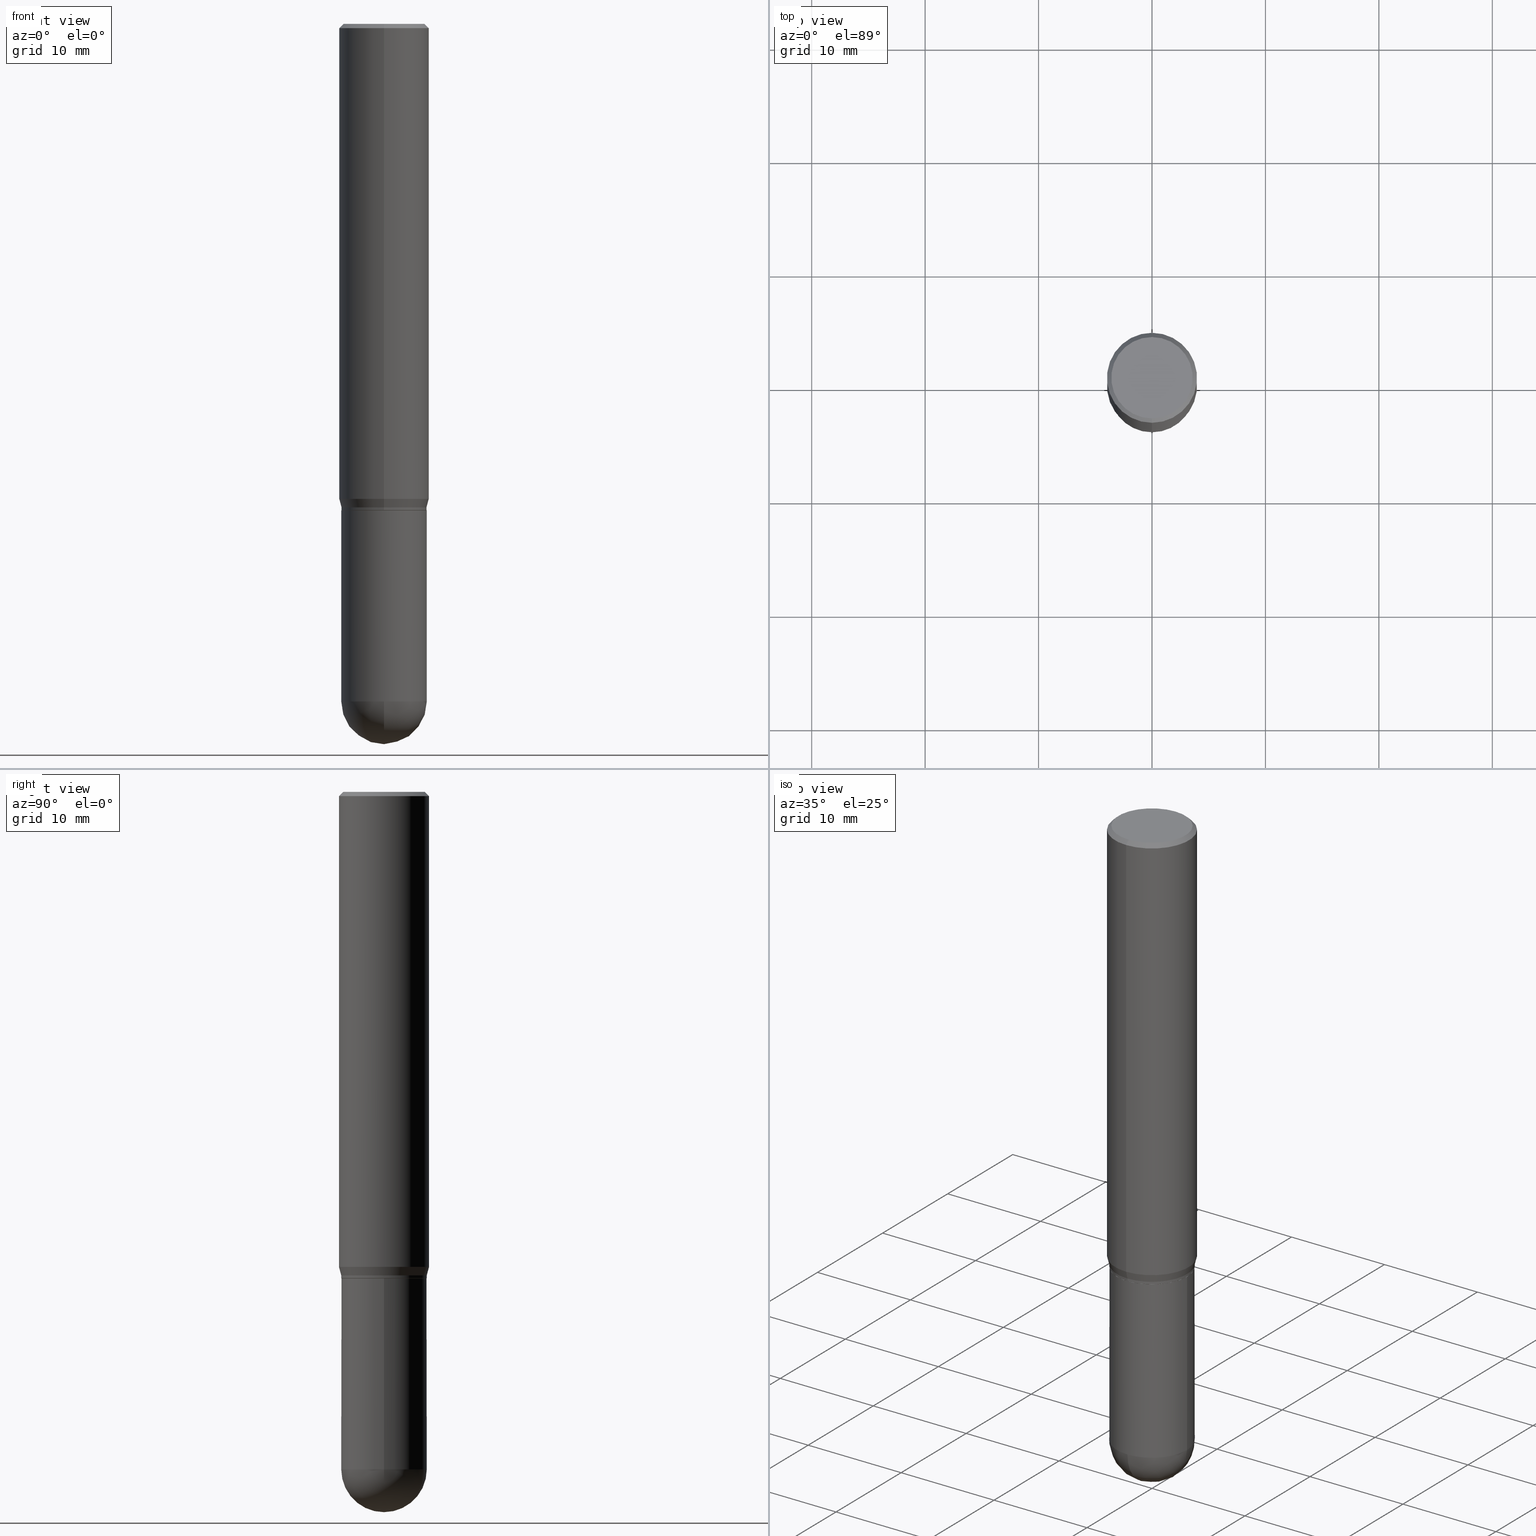
[diagram: canonical four-view strip — front | top / right | iso, engineering-drawing reading convention]
A machine part, canonical four-view strip (front | top / right | iso — engineering-drawing reading convention). The complete STEP part file that produces these views, byte-faithful:
ISO-10303-21;
HEADER;
FILE_DESCRIPTION (( 'STEP AP203' ),
    '1' );
FILE_NAME ('39538.STEP',
    '2024-03-08T12:53:18',
    ( '' ),
    ( '' ),
    'SwSTEP 2.0',
    'SolidWorks 2023',
    '' );
FILE_SCHEMA (( 'CONFIG_CONTROL_DESIGN' ));
ENDSEC;

DATA;
#1 = AXIS2_PLACEMENT_3D ( 'NONE', #288, #17, #325 ) ;
#2 = VECTOR ( 'NONE', #437, 39.37007874015748143 ) ;
#3 = CYLINDRICAL_SURFACE ( 'NONE', #304, 0.1484499999999999986 ) ;
#4 = ORIENTED_EDGE ( 'NONE', *, *, #328, .F. ) ;
#5 = DATE_AND_TIME ( #483, #411 ) ;
#6 = EDGE_CURVE ( 'NONE', #380, #352, #165, .T. ) ;
#7 = DIRECTION ( 'NONE',  ( -6.982962677686265922E-15, -1.000000000000000000, 3.491450888933196382E-15 ) ) ;
#8 = EDGE_CURVE ( 'NONE', #61, #349, #104, .T. ) ;
#9 = CLOSED_SHELL ( 'NONE', ( #420, #14, #332, #322, #309, #75, #497, #473, #168, #412, #426, #318 ) ) ;
#10 = AXIS2_PLACEMENT_3D ( 'NONE', #424, #73, #376 ) ;
#11 = PERSON_AND_ORGANIZATION ( #233, #422 ) ;
#12 = ORIENTED_EDGE ( 'NONE', *, *, #481, .T. ) ;
#13 = CARTESIAN_POINT ( 'NONE',  ( 4.103532336190774376E-29, -5.858654591629903200E-15, -1.677999999999999936 ) ) ;
#14 = ADVANCED_FACE ( 'NONE', ( #191 ), #409, .T. ) ;
#15 = CARTESIAN_POINT ( 'NONE',  ( 4.032344129325759959E-29, -5.757018469174787690E-15, -1.648890003700962614 ) ) ;
#16 = CALENDAR_DATE ( 2024, 8, 3 ) ;
#17 = DIRECTION ( 'NONE',  ( -2.445468806185136597E-29, 3.491481338843145583E-15, 1.000000000000000000 ) ) ;
#18 = CIRCLE ( 'NONE', #388, 0.1484499999999999154 ) ;
#19 = DIRECTION ( 'NONE',  ( -6.982962677686265133E-15, -1.000000000000000000, 3.680495781292373980E-15 ) ) ;
#20 = LOCAL_TIME ( 7, 53, 18.00000000000000000, #480 ) ;
#21 = CYLINDRICAL_SURFACE ( 'NONE', #410, 0.1562500000000000000 ) ;
#22 = EDGE_LOOP ( 'NONE', ( #70, #432, #39, #478 ) ) ;
#23 = CARTESIAN_POINT ( 'NONE',  ( 0.000000000000000000, 0.000000000000000000, 0.000000000000000000 ) ) ;
#24 = ORIENTED_EDGE ( 'NONE', *, *, #396, .T. ) ;
#25 = CARTESIAN_POINT ( 'NONE',  ( 4.127987236883210473E-29, -5.893569100519235546E-15, -1.688000000000000167 ) ) ;
#26 = VECTOR ( 'NONE', #166, 39.37007874015748143 ) ;
#27 = ORIENTED_EDGE ( 'NONE', *, *, #145, .T. ) ;
#28 = ORIENTED_EDGE ( 'NONE', *, *, #257, .T. ) ;
#29 = EDGE_CURVE ( 'NONE', #278, #41, #247, .T. ) ;
#30 = DIRECTION ( 'NONE',  ( -4.937700262164631661E-15, -0.7071067811865571207, 0.7071067811865379138 ) ) ;
#31 = CARTESIAN_POINT ( 'NONE',  ( 0.000000000000000000, 0.000000000000000000, 0.000000000000000000 ) ) ;
#32 = DIRECTION ( 'NONE',  ( -2.445490069243608012E-29, 3.491450888933196382E-15, 1.000000000000000000 ) ) ;
#33 = EDGE_CURVE ( 'NONE', #195, #59, #85, .T. ) ;
#34 = ORIENTED_EDGE ( 'NONE', *, *, #92, .F. ) ;
#35 = CIRCLE ( 'NONE', #10, 0.1484499999999999986 ) ;
#36 = AXIS2_PLACEMENT_3D ( 'NONE', #327, #400, #55 ) ;
#37 = CARTESIAN_POINT ( 'NONE',  ( 4.127987236883210473E-29, -5.893569100519235546E-15, -1.688000000000000167 ) ) ;
#38 = CC_DESIGN_DATE_AND_TIME_ASSIGNMENT ( #139, #350, ( #135 ) ) ;
#39 = ORIENTED_EDGE ( 'NONE', *, *, #240, .T. ) ;
#40 = ORIENTED_EDGE ( 'NONE', *, *, #339, .F. ) ;
#41 = VERTEX_POINT ( 'NONE', #441 ) ;
#42 = FACE_OUTER_BOUND ( 'NONE', #211, .T. ) ;
#43 = CC_DESIGN_PERSON_AND_ORGANIZATION_ASSIGNMENT ( #398, #393, ( #115 ) ) ;
#44 =( CONVERSION_BASED_UNIT ( 'INCH', #199 ) LENGTH_UNIT ( ) NAMED_UNIT ( #270 ) );
#45 = ORIENTED_EDGE ( 'NONE', *, *, #105, .T. ) ;
#46 = ORIENTED_EDGE ( 'NONE', *, *, #481, .F. ) ;
#47 = PERSON_AND_ORGANIZATION_ROLE ( 'classification_officer' ) ;
#48 = LINE ( 'NONE', #99, #72 ) ;
#49 = PERSON_AND_ORGANIZATION_ROLE ( 'creator' ) ;
#50 = DIRECTION ( 'NONE',  ( -6.982962677686265133E-15, -1.000000000000000000, 3.680495781292373980E-15 ) ) ;
#51 = EDGE_CURVE ( 'NONE', #278, #463, #297, .T. ) ;
#52 = EDGE_LOOP ( 'NONE', ( #4, #12, #363, #417 ) ) ;
#53 = APPROVAL_PERSON_ORGANIZATION ( #204, #467, #98 ) ;
#54 = COORDINATED_UNIVERSAL_TIME_OFFSET ( 5, 0, .BEHIND. ) ;
#55 = DIRECTION ( 'NONE',  ( 6.982962677686265922E-15, 1.000000000000000000, -3.680495781292373191E-15 ) ) ;
#56 = MECHANICAL_CONTEXT ( 'NONE', #175, 'mechanical' ) ;
#57 = ORIENTED_EDGE ( 'NONE', *, *, #222, .T. ) ;
#58 = LINE ( 'NONE', #394, #225 ) ;
#59 = VERTEX_POINT ( 'NONE', #320 ) ;
#60 = CARTESIAN_POINT ( 'NONE',  ( 0.000000000000000000, 0.000000000000000000, 0.000000000000000000 ) ) ;
#61 = VERTEX_POINT ( 'NONE', #366 ) ;
#62 = DIRECTION ( 'NONE',  ( -2.445468806185136597E-29, 3.491481338843145583E-15, 1.000000000000000000 ) ) ;
#63 = EDGE_LOOP ( 'NONE', ( #203, #78 ) ) ;
#64 = AXIS2_PLACEMENT_3D ( 'NONE', #224, #465, #192 ) ;
#65 = DIRECTION ( 'NONE',  ( -2.445490069243608012E-29, 3.491450888933196382E-15, 1.000000000000000000 ) ) ;
#66 = AXIS2_PLACEMENT_3D ( 'NONE', #313, #479, #193 ) ;
#67 = EDGE_LOOP ( 'NONE', ( #57, #243 ) ) ;
#68 = CARTESIAN_POINT ( 'NONE',  ( 6.107324543681408519E-29, -8.737793287974535465E-15, -2.500000000000000000 ) ) ;
#69 = DIRECTION ( 'NONE',  ( -2.445490069243607732E-29, 3.491450888933196382E-15, 1.000000000000000000 ) ) ;
#70 = ORIENTED_EDGE ( 'NONE', *, *, #105, .F. ) ;
#71 = DIRECTION ( 'NONE',  ( -2.445468806185136877E-29, 3.491481338843145188E-15, 1.000000000000000000 ) ) ;
#72 = VECTOR ( 'NONE', #444, 39.37007874015748143 ) ;
#73 = DIRECTION ( 'NONE',  ( -2.445468806185136597E-29, 3.491481338843145583E-15, 1.000000000000000000 ) ) ;
#74 = ORIENTED_EDGE ( 'NONE', *, *, #239, .T. ) ;
#75 = ADVANCED_FACE ( 'NONE', ( #246 ), #97, .T. ) ;
#76 =( NAMED_UNIT ( * ) SI_UNIT ( $, .STERADIAN. ) SOLID_ANGLE_UNIT ( ) );
#77 = PRODUCT_DEFINITION_SHAPE ( 'NONE', 'NONE',  #135 ) ;
#78 = ORIENTED_EDGE ( 'NONE', *, *, #339, .T. ) ;
#79 = AXIS2_PLACEMENT_3D ( 'NONE', #258, #302, #408 ) ;
#80 = CARTESIAN_POINT ( 'NONE',  ( -1.036620809502525501E-15, -0.1484499999999999154, 5.183058844621327306E-16 ) ) ;
#81 = CARTESIAN_POINT ( 'NONE',  ( -0.1484499999999999986, -5.997206029926045282E-15, -1.688000000000000167 ) ) ;
#82 = ORIENTED_EDGE ( 'NONE', *, *, #6, .T. ) ;
#83 = ADVANCED_FACE ( 'NONE', ( #173 ), #250, .F. ) ;
#84 = DIRECTION ( 'NONE',  ( 1.000000000000000000, -6.982962677686261189E-15, 0.000000000000000000 ) ) ;
#85 = CIRCLE ( 'NONE', #440, 0.1484499999999999154 ) ;
#86 = AXIS2_PLACEMENT_3D ( 'NONE', #485, #208, #256 ) ;
#87 = CONICAL_SURFACE ( 'NONE', #390, 0.1562500000000000000, 0.7853981633974485010 ) ;
#88 = PERSON_AND_ORGANIZATION ( #233, #422 ) ;
#89 = CARTESIAN_POINT ( 'NONE',  ( 1.091087918388479371E-15, 0.1562499999999999445, -0.01500000000000057711 ) ) ;
#90 = ORIENTED_EDGE ( 'NONE', *, *, #307, .F. ) ;
#91 = ORIENTED_EDGE ( 'NONE', *, *, #503, .F. ) ;
#92 = EDGE_CURVE ( 'NONE', #374, #439, #114, .T. ) ;
#93 = DIRECTION ( 'NONE',  ( -2.445468806185136877E-29, 3.491481338843145188E-15, 1.000000000000000000 ) ) ;
#94 = CALENDAR_DATE ( 2024, 8, 3 ) ;
#95 = DIRECTION ( 'NONE',  ( 1.000000000000000000, -6.982962677686261189E-15, 0.000000000000000000 ) ) ;
#96 = VERTEX_POINT ( 'NONE', #144 ) ;
#97 = CONICAL_SURFACE ( 'NONE', #450, 0.1484499999999999154, 0.2617993877991516838 ) ;
#98 = APPROVAL_ROLE ( '' ) ;
#99 = CARTESIAN_POINT ( 'NONE',  ( 1.051247977557109233E-15, 0.1479499999999940862, -1.688000000000000611 ) ) ;
#100 = CALENDAR_DATE ( 2024, 8, 3 ) ;
#101 = DIRECTION ( 'NONE',  ( -2.445490069243608012E-29, 3.491450888933196382E-15, 1.000000000000000000 ) ) ;
#102 = ADVANCED_FACE ( 'NONE', ( #213 ), #134, .T. ) ;
#103 = DIRECTION ( 'NONE',  ( -2.445490069243607732E-29, 3.491450888933196382E-15, 1.000000000000000000 ) ) ;
#104 = CIRCLE ( 'NONE', #218, 0.1479499999999999982 ) ;
#105 = EDGE_CURVE ( 'NONE', #61, #59, #48, .T. ) ;
#106 = CIRCLE ( 'NONE', #1, 0.1484499999999999986 ) ;
#107 = LOCAL_TIME ( 7, 53, 18.00000000000000000, #286 ) ;
#108 = CARTESIAN_POINT ( 'NONE',  ( 4.032344129325759959E-29, -5.757018469174787690E-15, -1.648890003700962614 ) ) ;
#109 = VERTEX_POINT ( 'NONE', #492 ) ;
#110 = EDGE_CURVE ( 'NONE', #463, #264, #242, .T. ) ;
#111 = DIRECTION ( 'NONE',  ( -7.105427357601001859E-15, -1.000000000000000000, 0.000000000000000000 ) ) ;
#112 = CARTESIAN_POINT ( 'NONE',  ( 1.110223024625156343E-15, 0.1562500000000000000, -5.455392013958119963E-16 ) ) ;
#113 = FACE_OUTER_BOUND ( 'NONE', #182, .T. ) ;
#114 = CIRCLE ( 'NONE', #316, 0.1484499999999999986 ) ;
#115 = PRODUCT_DEFINITION_FORMATION_WITH_SPECIFIED_SOURCE ( 'ANY', '', #127, .NOT_KNOWN. ) ;
#116 = DIRECTION ( 'NONE',  ( -2.445490069243608012E-29, 3.491450888933196382E-15, 1.000000000000000000 ) ) ;
#117 = PLANE ( 'NONE',  #299 ) ;
#118 = APPROVAL ( #395, 'UNSPECIFIED' ) ;
#119 = ORIENTED_EDGE ( 'NONE', *, *, #403, .F. ) ;
#120 = DIRECTION ( 'NONE',  ( -2.445490069243608012E-29, 3.491450888933196382E-15, 1.000000000000000000 ) ) ;
#121 = ORIENTED_EDGE ( 'NONE', *, *, #29, .T. ) ;
#122 = DIRECTION ( 'NONE',  ( -2.445468806185136597E-29, 3.491481338843145583E-15, 1.000000000000000000 ) ) ;
#123 = EDGE_LOOP ( 'NONE', ( #438, #74, #119, #91 ) ) ;
#124 = AXIS2_PLACEMENT_3D ( 'NONE', #200, #305, #344 ) ;
#125 = CARTESIAN_POINT ( 'NONE',  ( 4.127987236883210473E-29, -5.893569100519235546E-15, -1.688000000000000167 ) ) ;
#126 = ORIENTED_EDGE ( 'NONE', *, *, #159, .F. ) ;
#127 = PRODUCT ( '39538', '39538', '', ( #56 ) ) ;
#128 = DIRECTION ( 'NONE',  ( -6.982962677686265922E-15, -1.000000000000000000, 3.692934090793191643E-15 ) ) ;
#129 = DIRECTION ( 'NONE',  ( -6.982962677686265133E-15, -1.000000000000000000, 3.680495781292373980E-15 ) ) ;
#130 = PERSON_AND_ORGANIZATION_ROLE ( 'design_owner' ) ;
#131 = AXIS2_PLACEMENT_3D ( 'NONE', #31, #504, #185 ) ;
#132 = APPROVAL_PERSON_ORGANIZATION ( #88, #118, #446 ) ;
#133 = PERSON_AND_ORGANIZATION ( #233, #422 ) ;
#134 = SPHERICAL_SURFACE ( 'NONE', #36, 0.1484499999999999431 ) ;
#135 = PRODUCT_DEFINITION ( 'UNKNOWN', '', #115, #456 ) ;
#136 = DIRECTION ( 'NONE',  ( 1.000000000000000000, 0.000000000000000000, 0.000000000000000000 ) ) ;
#137 = CARTESIAN_POINT ( 'NONE',  ( 5.750642171184658911E-29, -8.210392942356599628E-15, -2.351550000000000029 ) ) ;
#138 = ORIENTED_EDGE ( 'NONE', *, *, #245, .F. ) ;
#139 = DATE_AND_TIME ( #16, #20 ) ;
#140 = DIRECTION ( 'NONE',  ( -2.445490069243608012E-29, 3.491450888933196382E-15, 1.000000000000000000 ) ) ;
#141 = VECTOR ( 'NONE', #71, 39.37007874015748143 ) ;
#142 = LOCAL_TIME ( 7, 53, 18.00000000000000000, #54 ) ;
#143 = SHAPE_DEFINITION_REPRESENTATION ( #77, #174 ) ;
#144 = CARTESIAN_POINT ( 'NONE',  ( 1.110223024625196772E-15, 0.1562499999999942268, -1.648890003700963280 ) ) ;
#145 = EDGE_CURVE ( 'NONE', #488, #380, #18, .T. ) ;
#146 = LINE ( 'NONE', #268, #267 ) ;
#147 = CARTESIAN_POINT ( 'NONE',  ( -1.033129328163641670E-15, -0.1479500000000058824, -1.687999999999999501 ) ) ;
#148 = ORIENTED_EDGE ( 'NONE', *, *, #509, .T. ) ;
#149 = VECTOR ( 'NONE', #358, 39.37007874015748143 ) ;
#150 = AXIS2_PLACEMENT_3D ( 'NONE', #108, #262, #413 ) ;
#151 = DIRECTION ( 'NONE',  ( -6.982962677686265133E-15, -1.000000000000000000, 3.491450888933196776E-15 ) ) ;
#152 = ORIENTED_EDGE ( 'NONE', *, *, #145, .F. ) ;
#153 = DIRECTION ( 'NONE',  ( -1.000000000000000000, 7.105427357601001070E-15, -4.926315508542082329E-29 ) ) ;
#154 = FACE_OUTER_BOUND ( 'NONE', #259, .T. ) ;
#155 = CARTESIAN_POINT ( 'NONE',  ( 4.127987236883210473E-29, -5.893569100519235546E-15, -1.688000000000000167 ) ) ;
#156 = FACE_OUTER_BOUND ( 'NONE', #123, .T. ) ;
#157 = VECTOR ( 'NONE', #93, 39.37007874015748143 ) ;
#158 = EDGE_CURVE ( 'NONE', #352, #96, #355, .T. ) ;
#159 = EDGE_CURVE ( 'NONE', #351, #439, #212, .T. ) ;
#160 = ORIENTED_EDGE ( 'NONE', *, *, #197, .T. ) ;
#161 = AXIS2_PLACEMENT_3D ( 'NONE', #381, #32, #269 ) ;
#162 = AXIS2_PLACEMENT_3D ( 'NONE', #430, #470, #507 ) ;
#163 = FACE_OUTER_BOUND ( 'NONE', #290, .T. ) ;
#164 = EDGE_LOOP ( 'NONE', ( #46, #301, #495, #405 ) ) ;
#165 = LINE ( 'NONE', #249, #149 ) ;
#166 = DIRECTION ( 'NONE',  ( 4.937700262164548831E-15, 0.7071067811865452413, -0.7071067811865497932 ) ) ;
#167 = AXIS2_PLACEMENT_3D ( 'NONE', #155, #116, #329 ) ;
#168 = ADVANCED_FACE ( 'NONE', ( #216 ), #181, .F. ) ;
#169 = AXIS2_PLACEMENT_3D ( 'NONE', #377, #231, #445 ) ;
#170 = LOCAL_TIME ( 7, 53, 18.00000000000000000, #284 ) ;
#171 = SECURITY_CLASSIFICATION_LEVEL ( 'unclassified' ) ;
#172 = CARTESIAN_POINT ( 'NONE',  ( 4.126764491848588977E-29, -5.891823375074769560E-15, -1.687500000000000222 ) ) ;
#173 = FACE_OUTER_BOUND ( 'NONE', #63, .T. ) ;
#174 = ADVANCED_BREP_SHAPE_REPRESENTATION ( '39538', ( #296, #294, #226 ), #500 ) ;
#175 = APPLICATION_CONTEXT ( 'configuration controlled 3d designs of mechanical parts and assemblies' ) ;
#176 = CC_DESIGN_PERSON_AND_ORGANIZATION_ASSIGNMENT ( #133, #315, ( #115 ) ) ;
#177 = DATE_AND_TIME ( #94, #170 ) ;
#178 = DIRECTION ( 'NONE',  ( -6.982962677686265133E-15, -1.000000000000000000, 3.496765431890256920E-15 ) ) ;
#179 = DIRECTION ( 'NONE',  ( -4.851104656540965064E-15, -0.7071067811865501263, -0.7071067811865449082 ) ) ;
#180 = CIRCLE ( 'NONE', #346, 0.1484499999999999986 ) ;
#181 = PLANE ( 'NONE',  #310 ) ;
#182 = EDGE_LOOP ( 'NONE', ( #209, #160, #365, #152 ) ) ;
#183 = DIRECTION ( 'NONE',  ( -2.445490069243608012E-29, 3.491450888933196382E-15, 1.000000000000000000 ) ) ;
#184 = EDGE_CURVE ( 'NONE', #488, #96, #58, .T. ) ;
#185 = DIRECTION ( 'NONE',  ( -6.982962677686265133E-15, -1.000000000000000000, 3.491450888933196382E-15 ) ) ;
#186 = ADVANCED_FACE ( 'NONE', ( #487 ), #281, .T. ) ;
#187 = AXIS2_PLACEMENT_3D ( 'NONE', #172, #140, #50 ) ;
#188 = LINE ( 'NONE', #190, #141 ) ;
#189 = ORIENTED_EDGE ( 'NONE', *, *, #257, .F. ) ;
#190 = CARTESIAN_POINT ( 'NONE',  ( 0.1484499999999999986, -1.036620809502526093E-15, 7.238684423669066410E-30 ) ) ;
#191 = FACE_OUTER_BOUND ( 'NONE', #279, .T. ) ;
#192 = DIRECTION ( 'NONE',  ( -6.982962677686265133E-15, -1.000000000000000000, 3.680495781292373980E-15 ) ) ;
#193 = DIRECTION ( 'NONE',  ( -6.982962677686265133E-15, -1.000000000000000000, 3.491450888933196776E-15 ) ) ;
#194 = CIRCLE ( 'NONE', #260, 0.1484499999999999431 ) ;
#195 = VERTEX_POINT ( 'NONE', #356 ) ;
#196 = FACE_OUTER_BOUND ( 'NONE', #232, .T. ) ;
#197 = EDGE_CURVE ( 'NONE', #59, #195, #459, .T. ) ;
#198 = ORIENTED_EDGE ( 'NONE', *, *, #51, .F. ) ;
#199 = LENGTH_MEASURE_WITH_UNIT ( LENGTH_MEASURE( 0.02539999999999999897 ), #389 );
#200 = CARTESIAN_POINT ( 'NONE',  ( 5.750642171184658911E-29, -8.210392942356599628E-15, -2.351550000000000029 ) ) ;
#201 = AXIS2_PLACEMENT_3D ( 'NONE', #285, #359, #206 ) ;
#202 =( NAMED_UNIT ( * ) PLANE_ANGLE_UNIT ( ) SI_UNIT ( $, .RADIAN. ) );
#203 = ORIENTED_EDGE ( 'NONE', *, *, #92, .T. ) ;
#204 = PERSON_AND_ORGANIZATION ( #233, #422 ) ;
#205 = CC_DESIGN_PERSON_AND_ORGANIZATION_ASSIGNMENT ( #244, #130, ( #127 ) ) ;
#206 = DIRECTION ( 'NONE',  ( 6.982962677686265922E-15, 1.000000000000000000, -3.680495781292373191E-15 ) ) ;
#207 = DATE_TIME_ROLE ( 'classification_date' ) ;
#208 = DIRECTION ( 'NONE',  ( 2.438088387897960049E-29, -3.491481338843145188E-15, -1.000000000000000000 ) ) ;
#209 = ORIENTED_EDGE ( 'NONE', *, *, #239, .F. ) ;
#210 = APPROVAL_ROLE ( '' ) ;
#211 = EDGE_LOOP ( 'NONE', ( #189, #510 ) ) ;
#212 = LINE ( 'NONE', #362, #157 ) ;
#213 = FACE_OUTER_BOUND ( 'NONE', #164, .T. ) ;
#214 = CARTESIAN_POINT ( 'NONE',  ( -1.071952812151801215E-15, -0.1562500000000000833, -0.01499999999999948423 ) ) ;
#215 = ORIENTED_EDGE ( 'NONE', *, *, #184, .T. ) ;
#216 = FACE_OUTER_BOUND ( 'NONE', #67, .T. ) ;
#217 = ORIENTED_EDGE ( 'NONE', *, *, #184, .F. ) ;
#218 = AXIS2_PLACEMENT_3D ( 'NONE', #37, #512, #230 ) ;
#219 = CIRCLE ( 'NONE', #79, 0.1562500000000000000 ) ;
#220 = FACE_OUTER_BOUND ( 'NONE', #472, .T. ) ;
#221 = CARTESIAN_POINT ( 'NONE',  ( 0.1484499999999999986, -6.930241309469756235E-15, -1.688000000000000167 ) ) ;
#222 = EDGE_CURVE ( 'NONE', #463, #278, #375, .T. ) ;
#223 = UNCERTAINTY_MEASURE_WITH_UNIT (LENGTH_MEASURE( 1.000000000000000082E-05 ), #44, 'distance_accuracy_value', 'NONE');
#224 = CARTESIAN_POINT ( 'NONE',  ( 4.103532336190774376E-29, -5.858654591629903200E-15, -1.677999999999999936 ) ) ;
#225 = VECTOR ( 'NONE', #494, 39.37007874015748854 ) ;
#226 = AXIS2_PLACEMENT_3D ( 'NONE', #60, #401, #136 ) ;
#227 = DIRECTION ( 'NONE',  ( 2.445490069243608012E-29, -3.491450888933196382E-15, -1.000000000000000000 ) ) ;
#228 = EDGE_CURVE ( 'NONE', #351, #109, #106, .T. ) ;
#229 = LINE ( 'NONE', #338, #334 ) ;
#230 = DIRECTION ( 'NONE',  ( -6.982962677686265922E-15, -1.000000000000000000, 3.692934090793191643E-15 ) ) ;
#231 = DIRECTION ( 'NONE',  ( -2.445490069243608012E-29, 3.491450888933196382E-15, 1.000000000000000000 ) ) ;
#232 = EDGE_LOOP ( 'NONE', ( #252, #287, #312, #90 ) ) ;
#233 = PERSON ( 'UNSPECIFIED', 'UNSPECIFIED', 'UNSPECIFIED', ('UNSPECIFIED'), ('UNSPECIFIED'), ('UNSPECIFIED') ) ;
#234 = AXIS2_PLACEMENT_3D ( 'NONE', #303, #227, #466 ) ;
#235 = CARTESIAN_POINT ( 'NONE',  ( 1.038715698305832292E-15, 0.1412499999999999867, -5.229927836163188776E-16 ) ) ;
#236 = CARTESIAN_POINT ( 'NONE',  ( 5.750642171184658911E-29, -8.210392942356599628E-15, -2.351550000000000029 ) ) ;
#237 = EDGE_CURVE ( 'NONE', #490, #343, #180, .T. ) ;
#238 = CYLINDRICAL_SURFACE ( 'NONE', #66, 0.1562500000000000000 ) ;
#239 = EDGE_CURVE ( 'NONE', #59, #488, #254, .T. ) ;
#240 = EDGE_CURVE ( 'NONE', #349, #195, #146, .T. ) ;
#241 = PERSON_AND_ORGANIZATION ( #233, #422 ) ;
#242 = LINE ( 'NONE', #89, #26 ) ;
#243 = ORIENTED_EDGE ( 'NONE', *, *, #51, .T. ) ;
#244 = PERSON_AND_ORGANIZATION ( #233, #422 ) ;
#245 = EDGE_CURVE ( 'NONE', #41, #264, #219, .T. ) ;
#246 = FACE_OUTER_BOUND ( 'NONE', #501, .T. ) ;
#247 = LINE ( 'NONE', #214, #419 ) ;
#248 = APPROVAL_DATE_TIME ( #489, #118 ) ;
#249 = CARTESIAN_POINT ( 'NONE',  ( -1.036620809502484480E-15, -0.1484500000000057718, -1.677999999999999492 ) ) ;
#250 = PLANE ( 'NONE',  #86 ) ;
#251 = VECTOR ( 'NONE', #103, 39.37007874015748143 ) ;
#252 = ORIENTED_EDGE ( 'NONE', *, *, #314, .F. ) ;
#253 = APPROVAL_STATUS ( 'not_yet_approved' ) ;
#254 = LINE ( 'NONE', #498, #251 ) ;
#255 = APPLICATION_PROTOCOL_DEFINITION ( 'international standard', 'config_control_design', 1994, #392 ) ;
#256 = DIRECTION ( 'NONE',  ( -1.000000000000000000, 6.982962677686265922E-15, -4.876176775795935793E-29 ) ) ;
#257 = EDGE_CURVE ( 'NONE', #349, #61, #482, .T. ) ;
#258 = CARTESIAN_POINT ( 'NONE',  ( 3.668235103865419358E-31, -5.237176333399805124E-17, -0.01500000000000003067 ) ) ;
#259 = EDGE_LOOP ( 'NONE', ( #198, #121, #348, #493 ) ) ;
#260 = AXIS2_PLACEMENT_3D ( 'NONE', #418, #153, #111 ) ;
#261 = PRODUCT_RELATED_PRODUCT_CATEGORY ( 'detail', '', ( #127 ) ) ;
#262 = DIRECTION ( 'NONE',  ( -2.445490069243608012E-29, 3.491450888933196382E-15, 1.000000000000000000 ) ) ;
#263 = CARTESIAN_POINT ( 'NONE',  ( -1.036620809502484480E-15, -0.1484500000000057718, -1.677999999999999492 ) ) ;
#264 = VERTEX_POINT ( 'NONE', #293 ) ;
#265 = FACE_OUTER_BOUND ( 'NONE', #423, .T. ) ;
#266 = ORIENTED_EDGE ( 'NONE', *, *, #364, .F. ) ;
#267 = VECTOR ( 'NONE', #30, 39.37007874015748143 ) ;
#268 = CARTESIAN_POINT ( 'NONE',  ( -1.033129328163641670E-15, -0.1479500000000058824, -1.687999999999999501 ) ) ;
#269 = DIRECTION ( 'NONE',  ( -6.982962677686265133E-15, -1.000000000000000000, 3.680495781292373980E-15 ) ) ;
#270 = DIMENSIONAL_EXPONENTS ( 1.000000000000000000, 0.000000000000000000, 0.000000000000000000, 0.000000000000000000, 0.000000000000000000, 0.000000000000000000, 0.000000000000000000 ) ;
#271 = ORIENTED_EDGE ( 'NONE', *, *, #314, .T. ) ;
#272 = ORIENTED_EDGE ( 'NONE', *, *, #29, .F. ) ;
#273 = AXIS2_PLACEMENT_3D ( 'NONE', #23, #333, #462 ) ;
#274 = DIRECTION ( 'NONE',  ( 6.982962677686265133E-15, 1.000000000000000000, -3.496765431890256920E-15 ) ) ;
#275 = CARTESIAN_POINT ( 'NONE',  ( 0.000000000000000000, 0.000000000000000000, 0.000000000000000000 ) ) ;
#276 = EDGE_CURVE ( 'NONE', #490, #374, #188, .T. ) ;
#277 = LINE ( 'NONE', #80, #2 ) ;
#278 = VERTEX_POINT ( 'NONE', #336 ) ;
#279 = EDGE_LOOP ( 'NONE', ( #28, #45, #457, #434 ) ) ;
#280 = CALENDAR_DATE ( 2024, 8, 3 ) ;
#281 = SPHERICAL_SURFACE ( 'NONE', #201, 0.1484499999999999431 ) ;
#282 = CONICAL_SURFACE ( 'NONE', #64, 0.1484499999999999154, 0.2617993877991516838 ) ;
#283 = DIRECTION ( 'NONE',  ( -2.445490069243608012E-29, 3.491450888933196382E-15, 1.000000000000000000 ) ) ;
#284 = COORDINATED_UNIVERSAL_TIME_OFFSET ( 5, 0, .BEHIND. ) ;
#285 = CARTESIAN_POINT ( 'NONE',  ( 5.737947227621790723E-29, -8.228572824089942252E-15, -2.351550000000000029 ) ) ;
#286 = COORDINATED_UNIVERSAL_TIME_OFFSET ( 5, 0, .BEHIND. ) ;
#287 = ORIENTED_EDGE ( 'NONE', *, *, #364, .T. ) ;
#288 = CARTESIAN_POINT ( 'NONE',  ( 5.750642171184658911E-29, -8.210392942356599628E-15, -2.351550000000000029 ) ) ;
#289 = AXIS2_PLACEMENT_3D ( 'NONE', #236, #425, #84 ) ;
#290 = EDGE_LOOP ( 'NONE', ( #272, #372, #407, #292 ) ) ;
#291 = CARTESIAN_POINT ( 'NONE',  ( 4.103532336190774376E-29, -5.858654591629903200E-15, -1.677999999999999936 ) ) ;
#292 = ORIENTED_EDGE ( 'NONE', *, *, #307, .T. ) ;
#293 = CARTESIAN_POINT ( 'NONE',  ( 1.110223024625197167E-15, 0.1562499999999999445, -0.01500000000000057711 ) ) ;
#294 = MANIFOLD_SOLID_BREP ( 'Body-Move/Copy2[2]', #9 ) ;
#295 = CARTESIAN_POINT ( 'NONE',  ( -0.1484500000000000264, -5.997206029926045282E-15, -2.351550000000000029 ) ) ;
#296 = MANIFOLD_SOLID_BREP ( 'Body-Move/Copy2[1]', #345 ) ;
#297 = CIRCLE ( 'NONE', #169, 0.1412499999999999867 ) ;
#298 = CIRCLE ( 'NONE', #150, 0.1562500000000000000 ) ;
#299 = AXIS2_PLACEMENT_3D ( 'NONE', #125, #511, #387 ) ;
#300 = CYLINDRICAL_SURFACE ( 'NONE', #273, 0.1484499999999999986 ) ;
#301 = ORIENTED_EDGE ( 'NONE', *, *, #328, .T. ) ;
#302 = DIRECTION ( 'NONE',  ( -2.445490069243608012E-29, 3.491450888933196382E-15, 1.000000000000000000 ) ) ;
#303 = CARTESIAN_POINT ( 'NONE',  ( 3.668235103865419358E-31, -5.237176333399805124E-17, -0.01500000000000003067 ) ) ;
#304 = AXIS2_PLACEMENT_3D ( 'NONE', #275, #122, #433 ) ;
#305 = DIRECTION ( 'NONE',  ( -2.445468806185136597E-29, 3.491481338843145583E-15, 1.000000000000000000 ) ) ;
#306 = FACE_OUTER_BOUND ( 'NONE', #428, .T. ) ;
#307 = EDGE_CURVE ( 'NONE', #264, #41, #421, .T. ) ;
#308 = DIRECTION ( 'NONE',  ( -2.445490069243608012E-29, 3.491450888933196382E-15, 1.000000000000000000 ) ) ;
#309 = ADVANCED_FACE ( 'NONE', ( #220 ), #282, .T. ) ;
#310 = AXIS2_PLACEMENT_3D ( 'NONE', #447, #323, #454 ) ;
#311 = CARTESIAN_POINT ( 'NONE',  ( 0.000000000000000000, 0.000000000000000000, 0.000000000000000000 ) ) ;
#312 = ORIENTED_EDGE ( 'NONE', *, *, #341, .T. ) ;
#313 = CARTESIAN_POINT ( 'NONE',  ( 0.000000000000000000, 0.000000000000000000, 0.000000000000000000 ) ) ;
#314 = EDGE_CURVE ( 'NONE', #96, #264, #379, .T. ) ;
#315 = PERSON_AND_ORGANIZATION_ROLE ( 'creator' ) ;
#316 = AXIS2_PLACEMENT_3D ( 'NONE', #406, #62, #397 ) ;
#317 = DIRECTION ( 'NONE',  ( -6.982962677686265133E-15, -1.000000000000000000, 3.680495781292373980E-15 ) ) ;
#318 = ADVANCED_FACE ( 'NONE', ( #113 ), #368, .T. ) ;
#319 = PERSON_AND_ORGANIZATION ( #233, #422 ) ;
#320 = CARTESIAN_POINT ( 'NONE',  ( 1.054800691235909342E-15, 0.1484499999999940589, -1.687500000000000888 ) ) ;
#321 = CARTESIAN_POINT ( 'NONE',  ( 7.293758636530057434E-46, -1.041337292490156746E-31, -2.982534555450484013E-17 ) ) ;
#322 = ADVANCED_FACE ( 'NONE', ( #265 ), #21, .T. ) ;
#323 = DIRECTION ( 'NONE',  ( 2.445490069243607732E-29, -3.491450888933196382E-15, -1.000000000000000000 ) ) ;
#324 = DATE_AND_TIME ( #280, #142 ) ;
#325 = DIRECTION ( 'NONE',  ( 1.000000000000000000, -6.982962677686261189E-15, 0.000000000000000000 ) ) ;
#326 = AXIS2_PLACEMENT_3D ( 'NONE', #311, #347, #508 ) ;
#327 = CARTESIAN_POINT ( 'NONE',  ( 5.737947227621790723E-29, -8.228572824089942252E-15, -2.351550000000000029 ) ) ;
#328 = EDGE_CURVE ( 'NONE', #369, #109, #194, .T. ) ;
#329 = DIRECTION ( 'NONE',  ( -6.982962677686265922E-15, -1.000000000000000000, 3.692934090793191643E-15 ) ) ;
#330 = ORIENTED_EDGE ( 'NONE', *, *, #158, .T. ) ;
#331 = DIRECTION ( 'NONE',  ( -2.445490069243607732E-29, 3.491450888933196382E-15, 1.000000000000000000 ) ) ;
#332 = ADVANCED_FACE ( 'NONE', ( #154 ), #382, .T. ) ;
#333 = DIRECTION ( 'NONE',  ( -2.445468806185136597E-29, 3.491481338843145583E-15, 1.000000000000000000 ) ) ;
#334 = VECTOR ( 'NONE', #331, 39.37007874015748143 ) ;
#335 = CC_DESIGN_DATE_AND_TIME_ASSIGNMENT ( #177, #207, ( #443 ) ) ;
#336 = CARTESIAN_POINT ( 'NONE',  ( -1.020499077168515012E-15, -0.1412499999999999867, 4.633420925073091604E-16 ) ) ;
#337 = CARTESIAN_POINT ( 'NONE',  ( 3.668235103865419358E-31, -5.237176333399805124E-17, -0.01500000000000003067 ) ) ;
#338 = CARTESIAN_POINT ( 'NONE',  ( -1.091087918388478976E-15, -0.1562500000000000000, 5.455392013958119963E-16 ) ) ;
#339 = EDGE_CURVE ( 'NONE', #439, #374, #35, .T. ) ;
#340 = CARTESIAN_POINT ( 'NONE',  ( 1.082511857930552762E-15, 0.1484499999999940589, -1.678000000000000602 ) ) ;
#341 = EDGE_CURVE ( 'NONE', #352, #41, #229, .T. ) ;
#342 = ORIENTED_EDGE ( 'NONE', *, *, #237, .T. ) ;
#343 = VERTEX_POINT ( 'NONE', #496 ) ;
#344 = DIRECTION ( 'NONE',  ( 1.000000000000000000, -6.982962677686261189E-15, 0.000000000000000000 ) ) ;
#345 = CLOSED_SHELL ( 'NONE', ( #431, #102, #83, #186, #378 ) ) ;
#346 = AXIS2_PLACEMENT_3D ( 'NONE', #137, #448, #95 ) ;
#347 = DIRECTION ( 'NONE',  ( -2.445490069243608012E-29, 3.491450888933196382E-15, 1.000000000000000000 ) ) ;
#348 = ORIENTED_EDGE ( 'NONE', *, *, #245, .T. ) ;
#349 = VERTEX_POINT ( 'NONE', #147 ) ;
#350 = DATE_TIME_ROLE ( 'creation_date' ) ;
#351 = VERTEX_POINT ( 'NONE', #295 ) ;
#352 = VERTEX_POINT ( 'NONE', #458 ) ;
#353 = DIRECTION ( 'NONE',  ( -2.445490069243608012E-29, 3.491450888933196382E-15, 1.000000000000000000 ) ) ;
#354 = APPLICATION_PROTOCOL_DEFINITION ( 'international standard', 'config_control_design', 1994, #175 ) ;
#355 = CIRCLE ( 'NONE', #475, 0.1562500000000000000 ) ;
#356 = CARTESIAN_POINT ( 'NONE',  ( -1.036620809502484086E-15, -0.1484500000000057718, -1.687499999999999778 ) ) ;
#357 = APPROVAL_DATE_TIME ( #324, #467 ) ;
#358 = DIRECTION ( 'NONE',  ( -1.807323732225340000E-15, -0.2588190451025195737, 0.9659258262890685343 ) ) ;
#359 = DIRECTION ( 'NONE',  ( -1.000000000000000000, 6.982962677686265922E-15, -4.883557194083112901E-29 ) ) ;
#360 = ORIENTED_EDGE ( 'NONE', *, *, #341, .F. ) ;
#361 = COORDINATED_UNIVERSAL_TIME_OFFSET ( 5, 0, .BEHIND. ) ;
#362 = CARTESIAN_POINT ( 'NONE',  ( -0.1484499999999999986, 1.054800691235868716E-15, -7.302159141483407353E-30 ) ) ;
#363 = ORIENTED_EDGE ( 'NONE', *, *, #237, .F. ) ;
#364 = EDGE_CURVE ( 'NONE', #96, #352, #298, .T. ) ;
#365 = ORIENTED_EDGE ( 'NONE', *, *, #503, .T. ) ;
#366 = CARTESIAN_POINT ( 'NONE',  ( 1.053024334396509288E-15, 0.1479499999999940862, -1.688000000000000611 ) ) ;
#367 = CC_DESIGN_APPROVAL ( #386, ( #115 ) ) ;
#368 = CYLINDRICAL_SURFACE ( 'NONE', #131, 0.1484499999999999154 ) ;
#369 = VERTEX_POINT ( 'NONE', #68 ) ;
#370 = FACE_OUTER_BOUND ( 'NONE', #391, .T. ) ;
#371 = CC_DESIGN_PERSON_AND_ORGANIZATION_ASSIGNMENT ( #11, #49, ( #135 ) ) ;
#372 = ORIENTED_EDGE ( 'NONE', *, *, #222, .F. ) ;
#373 = CARTESIAN_POINT ( 'NONE',  ( 0.000000000000000000, 0.000000000000000000, 0.000000000000000000 ) ) ;
#374 = VERTEX_POINT ( 'NONE', #221 ) ;
#375 = CIRCLE ( 'NONE', #442, 0.1412499999999999867 ) ;
#376 = DIRECTION ( 'NONE',  ( 1.000000000000000000, -6.982962677686268288E-15, 0.000000000000000000 ) ) ;
#377 = CARTESIAN_POINT ( 'NONE',  ( 7.293758636530057434E-46, -1.041337292490156746E-31, -2.982534555450484013E-17 ) ) ;
#378 = ADVANCED_FACE ( 'NONE', ( #370 ), #300, .T. ) ;
#379 = LINE ( 'NONE', #112, #506 ) ;
#380 = VERTEX_POINT ( 'NONE', #263 ) ;
#381 = CARTESIAN_POINT ( 'NONE',  ( 4.103532336190774376E-29, -5.858654591629903200E-15, -1.677999999999999936 ) ) ;
#382 = CONICAL_SURFACE ( 'NONE', #234, 0.1562500000000000000, 0.7853981633974485010 ) ;
#383 = AXIS2_PLACEMENT_3D ( 'NONE', #474, #308, #128 ) ;
#384 = CONICAL_SURFACE ( 'NONE', #383, 0.1479499999999999982, 0.7853981633974653764 ) ;
#385 = DIRECTION ( 'NONE',  ( 2.445490069243608012E-29, -3.491450888933196382E-15, -1.000000000000000000 ) ) ;
#386 = APPROVAL ( #253, 'UNSPECIFIED' ) ;
#387 = DIRECTION ( 'NONE',  ( -6.982962677686265922E-15, -1.000000000000000000, 3.491450888933196382E-15 ) ) ;
#388 = AXIS2_PLACEMENT_3D ( 'NONE', #291, #402, #317 ) ;
#389 =( LENGTH_UNIT ( ) NAMED_UNIT ( * ) SI_UNIT ( $, .METRE. ) );
#390 = AXIS2_PLACEMENT_3D ( 'NONE', #427, #385, #274 ) ;
#391 = EDGE_LOOP ( 'NONE', ( #126, #435, #148, #453, #40 ) ) ;
#392 = APPLICATION_CONTEXT ( 'configuration controlled 3d designs of mechanical parts and assemblies' ) ;
#393 = PERSON_AND_ORGANIZATION_ROLE ( 'design_supplier' ) ;
#394 = CARTESIAN_POINT ( 'NONE',  ( 1.054800691235909145E-15, 0.1484499999999940589, -1.678000000000000602 ) ) ;
#395 = APPROVAL_STATUS ( 'not_yet_approved' ) ;
#396 = EDGE_CURVE ( 'NONE', #343, #351, #499, .T. ) ;
#397 = DIRECTION ( 'NONE',  ( 1.000000000000000000, -6.982962677686268288E-15, 0.000000000000000000 ) ) ;
#398 = PERSON_AND_ORGANIZATION ( #233, #422 ) ;
#399 = CIRCLE ( 'NONE', #161, 0.1484499999999999154 ) ;
#400 = DIRECTION ( 'NONE',  ( -1.000000000000000000, 6.982962677686265922E-15, -4.883557194083112901E-29 ) ) ;
#401 = DIRECTION ( 'NONE',  ( 0.000000000000000000, 0.000000000000000000, 1.000000000000000000 ) ) ;
#402 = DIRECTION ( 'NONE',  ( -2.445490069243608012E-29, 3.491450888933196382E-15, 1.000000000000000000 ) ) ;
#403 = EDGE_CURVE ( 'NONE', #380, #488, #399, .T. ) ;
#404 = ORIENTED_EDGE ( 'NONE', *, *, #159, .T. ) ;
#405 = ORIENTED_EDGE ( 'NONE', *, *, #396, .F. ) ;
#406 = CARTESIAN_POINT ( 'NONE',  ( 4.127951344840510809E-29, -5.893620499967230340E-15, -1.688000000000000167 ) ) ;
#407 = ORIENTED_EDGE ( 'NONE', *, *, #110, .T. ) ;
#408 = DIRECTION ( 'NONE',  ( -6.982962677686265133E-15, -1.000000000000000000, 3.496765431890256920E-15 ) ) ;
#409 = CONICAL_SURFACE ( 'NONE', #167, 0.1479499999999999982, 0.7853981633974653764 ) ;
#410 = AXIS2_PLACEMENT_3D ( 'NONE', #373, #183, #151 ) ;
#411 = LOCAL_TIME ( 7, 53, 18.00000000000000000, #361 ) ;
#412 = ADVANCED_FACE ( 'NONE', ( #42 ), #117, .F. ) ;
#413 = DIRECTION ( 'NONE',  ( -6.982962677686265133E-15, -1.000000000000000000, 3.496765431890256920E-15 ) ) ;
#414 = ORIENTED_EDGE ( 'NONE', *, *, #403, .T. ) ;
#415 = ORIENTED_EDGE ( 'NONE', *, *, #276, .F. ) ;
#416 = DIRECTION ( 'NONE',  ( -2.445490069243608012E-29, 3.491450888933196382E-15, 1.000000000000000000 ) ) ;
#417 = ORIENTED_EDGE ( 'NONE', *, *, #509, .F. ) ;
#418 = CARTESIAN_POINT ( 'NONE',  ( 5.737947227621790723E-29, -8.228572824089942252E-15, -2.351550000000000029 ) ) ;
#419 = VECTOR ( 'NONE', #179, 39.37007874015748143 ) ;
#420 = ADVANCED_FACE ( 'NONE', ( #156 ), #471, .T. ) ;
#421 = CIRCLE ( 'NONE', #491, 0.1562500000000000000 ) ;
#422 = ORGANIZATION ( 'UNSPECIFIED', 'UNSPECIFIED', '' ) ;
#423 = EDGE_LOOP ( 'NONE', ( #330, #271, #138, #360 ) ) ;
#424 = CARTESIAN_POINT ( 'NONE',  ( 4.127951344840510809E-29, -5.893620499967230340E-15, -1.688000000000000167 ) ) ;
#425 = DIRECTION ( 'NONE',  ( -2.445468806185136597E-29, 3.491481338843145583E-15, 1.000000000000000000 ) ) ;
#426 = ADVANCED_FACE ( 'NONE', ( #477 ), #384, .T. ) ;
#427 = CARTESIAN_POINT ( 'NONE',  ( 3.668235103865419358E-31, -5.237176333399805124E-17, -0.01500000000000003067 ) ) ;
#428 = EDGE_LOOP ( 'NONE', ( #24, #404, #34, #415, #342 ) ) ;
#429 = CIRCLE ( 'NONE', #162, 0.1484499999999999431 ) ;
#430 = CARTESIAN_POINT ( 'NONE',  ( 5.737947227621790723E-29, -8.228572824089942252E-15, -2.351550000000000029 ) ) ;
#431 = ADVANCED_FACE ( 'NONE', ( #306 ), #3, .T. ) ;
#432 = ORIENTED_EDGE ( 'NONE', *, *, #8, .T. ) ;
#433 = DIRECTION ( 'NONE',  ( 1.000000000000000000, -6.982962677686265133E-15, 4.876176775795935793E-29 ) ) ;
#434 = ORIENTED_EDGE ( 'NONE', *, *, #240, .F. ) ;
#435 = ORIENTED_EDGE ( 'NONE', *, *, #228, .T. ) ;
#436 = ORIENTED_EDGE ( 'NONE', *, *, #158, .F. ) ;
#437 = DIRECTION ( 'NONE',  ( -2.445490069243607732E-29, 3.491450888933196382E-15, 1.000000000000000000 ) ) ;
#438 = ORIENTED_EDGE ( 'NONE', *, *, #33, .T. ) ;
#439 = VERTEX_POINT ( 'NONE', #81 ) ;
#440 = AXIS2_PLACEMENT_3D ( 'NONE', #464, #120, #129 ) ;
#441 = CARTESIAN_POINT ( 'NONE',  ( -1.091087918388478779E-15, -0.1562500000000000833, -0.01499999999999948423 ) ) ;
#442 = AXIS2_PLACEMENT_3D ( 'NONE', #321, #353, #7 ) ;
#443 = SECURITY_CLASSIFICATION ( '', '', #171 ) ;
#444 = DIRECTION ( 'NONE',  ( 5.024295867788147587E-15, 0.7071067811865620056, 0.7071067811865330288 ) ) ;
#445 = DIRECTION ( 'NONE',  ( -6.982962677686265922E-15, -1.000000000000000000, 3.491450888933196382E-15 ) ) ;
#446 = APPROVAL_ROLE ( '' ) ;
#447 = CARTESIAN_POINT ( 'NONE',  ( 9.863434782231850151E-16, 0.1412499999999999867, -5.080801108390663251E-16 ) ) ;
#448 = DIRECTION ( 'NONE',  ( -2.445468806185136597E-29, 3.491481338843145583E-15, 1.000000000000000000 ) ) ;
#449 = ORIENTED_EDGE ( 'NONE', *, *, #6, .F. ) ;
#450 = AXIS2_PLACEMENT_3D ( 'NONE', #13, #101, #19 ) ;
#451 = CIRCLE ( 'NONE', #289, 0.1484499999999999986 ) ;
#452 = APPROVAL_STATUS ( 'not_yet_approved' ) ;
#453 = ORIENTED_EDGE ( 'NONE', *, *, #276, .T. ) ;
#454 = DIRECTION ( 'NONE',  ( 6.982962677686265922E-15, 1.000000000000000000, -3.491450888933196382E-15 ) ) ;
#455 = DIRECTION ( 'NONE',  ( -6.982962677686265922E-15, -1.000000000000000000, 3.692934090793191643E-15 ) ) ;
#456 = DESIGN_CONTEXT ( 'detailed design', #392, 'design' ) ;
#457 = ORIENTED_EDGE ( 'NONE', *, *, #33, .F. ) ;
#458 = CARTESIAN_POINT ( 'NONE',  ( -1.091087918388438744E-15, -0.1562500000000057732, -1.648890003700962170 ) ) ;
#459 = CIRCLE ( 'NONE', #187, 0.1484499999999999154 ) ;
#460 = CC_DESIGN_SECURITY_CLASSIFICATION ( #443, ( #115 ) ) ;
#461 = CC_DESIGN_PERSON_AND_ORGANIZATION_ASSIGNMENT ( #241, #47, ( #443 ) ) ;
#462 = DIRECTION ( 'NONE',  ( 1.000000000000000000, -6.982962677686265133E-15, 4.876176775795935793E-29 ) ) ;
#463 = VERTEX_POINT ( 'NONE', #235 ) ;
#464 = CARTESIAN_POINT ( 'NONE',  ( 4.126764491848588977E-29, -5.891823375074769560E-15, -1.687500000000000222 ) ) ;
#465 = DIRECTION ( 'NONE',  ( -2.445490069243608012E-29, 3.491450888933196382E-15, 1.000000000000000000 ) ) ;
#466 = DIRECTION ( 'NONE',  ( 6.982962677686265133E-15, 1.000000000000000000, -3.496765431890256920E-15 ) ) ;
#467 = APPROVAL ( #452, 'UNSPECIFIED' ) ;
#468 = AXIS2_PLACEMENT_3D ( 'NONE', #25, #416, #455 ) ;
#469 = CC_DESIGN_APPROVAL ( #118, ( #135 ) ) ;
#470 = DIRECTION ( 'NONE',  ( 1.000000000000000000, -6.982962677686265922E-15, 4.883557194083112340E-29 ) ) ;
#471 = CYLINDRICAL_SURFACE ( 'NONE', #326, 0.1484499999999999154 ) ;
#472 = EDGE_LOOP ( 'NONE', ( #414, #215, #436, #449 ) ) ;
#473 = ADVANCED_FACE ( 'NONE', ( #163 ), #87, .T. ) ;
#474 = CARTESIAN_POINT ( 'NONE',  ( 4.127987236883210473E-29, -5.893569100519235546E-15, -1.688000000000000167 ) ) ;
#475 = AXIS2_PLACEMENT_3D ( 'NONE', #15, #283, #178 ) ;
#476 = APPROVAL_PERSON_ORGANIZATION ( #319, #386, #210 ) ;
#477 = FACE_OUTER_BOUND ( 'NONE', #22, .T. ) ;
#478 = ORIENTED_EDGE ( 'NONE', *, *, #197, .F. ) ;
#479 = DIRECTION ( 'NONE',  ( -2.445490069243608012E-29, 3.491450888933196382E-15, 1.000000000000000000 ) ) ;
#480 = COORDINATED_UNIVERSAL_TIME_OFFSET ( 5, 0, .BEHIND. ) ;
#481 = EDGE_CURVE ( 'NONE', #369, #343, #429, .T. ) ;
#482 = CIRCLE ( 'NONE', #468, 0.1479499999999999982 ) ;
#483 = CALENDAR_DATE ( 2024, 8, 3 ) ;
#484 = CC_DESIGN_APPROVAL ( #467, ( #443 ) ) ;
#485 = CARTESIAN_POINT ( 'NONE',  ( 1.036620809502567311E-15, 0.1484499999999940867, -1.688000000000000611 ) ) ;
#486 = APPROVAL_DATE_TIME ( #5, #386 ) ;
#487 = FACE_OUTER_BOUND ( 'NONE', #52, .T. ) ;
#488 = VERTEX_POINT ( 'NONE', #340 ) ;
#489 = DATE_AND_TIME ( #100, #107 ) ;
#490 = VERTEX_POINT ( 'NONE', #505 ) ;
#491 = AXIS2_PLACEMENT_3D ( 'NONE', #337, #65, #502 ) ;
#492 = CARTESIAN_POINT ( 'NONE',  ( -1.054800691235810932E-15, -0.1484500000000082143, -2.351549999999999585 ) ) ;
#493 = ORIENTED_EDGE ( 'NONE', *, *, #110, .F. ) ;
#494 = DIRECTION ( 'NONE',  ( 1.839019923739609782E-15, 0.2588190451025262906, 0.9659258262890667579 ) ) ;
#495 = ORIENTED_EDGE ( 'NONE', *, *, #228, .F. ) ;
#496 = CARTESIAN_POINT ( 'NONE',  ( 1.036620809502583482E-15, 0.1484499999999917552, -2.351550000000000917 ) ) ;
#497 = ADVANCED_FACE ( 'NONE', ( #196 ), #238, .T. ) ;
#498 = CARTESIAN_POINT ( 'NONE',  ( 1.054800691235868124E-15, 0.1484499999999999154, -5.183058844621327306E-16 ) ) ;
#499 = CIRCLE ( 'NONE', #124, 0.1484499999999999986 ) ;
#500 =( GEOMETRIC_REPRESENTATION_CONTEXT ( 3 ) GLOBAL_UNCERTAINTY_ASSIGNED_CONTEXT ( ( #223 ) ) GLOBAL_UNIT_ASSIGNED_CONTEXT ( ( #44, #202, #76 ) ) REPRESENTATION_CONTEXT ( 'NONE', 'WORKASPACE' ) );
#501 = EDGE_LOOP ( 'NONE', ( #217, #27, #82, #266 ) ) ;
#502 = DIRECTION ( 'NONE',  ( -6.982962677686265133E-15, -1.000000000000000000, 3.496765431890256920E-15 ) ) ;
#503 = EDGE_CURVE ( 'NONE', #195, #380, #277, .T. ) ;
#504 = DIRECTION ( 'NONE',  ( -2.445490069243608012E-29, 3.491450888933196382E-15, 1.000000000000000000 ) ) ;
#505 = CARTESIAN_POINT ( 'NONE',  ( 0.1484500000000000264, -8.088627530664441274E-15, -2.351550000000000029 ) ) ;
#506 = VECTOR ( 'NONE', #69, 39.37007874015748143 ) ;
#507 = DIRECTION ( 'NONE',  ( 6.982962677686266711E-15, 1.000000000000000000, 0.000000000000000000 ) ) ;
#508 = DIRECTION ( 'NONE',  ( -6.982962677686265133E-15, -1.000000000000000000, 3.491450888933196382E-15 ) ) ;
#509 = EDGE_CURVE ( 'NONE', #109, #490, #451, .T. ) ;
#510 = ORIENTED_EDGE ( 'NONE', *, *, #8, .F. ) ;
#511 = DIRECTION ( 'NONE',  ( -2.445490069243607732E-29, 3.491450888933196382E-15, 1.000000000000000000 ) ) ;
#512 = DIRECTION ( 'NONE',  ( -2.445490069243608012E-29, 3.491450888933196382E-15, 1.000000000000000000 ) ) ;
ENDSEC;
END-ISO-10303-21;
